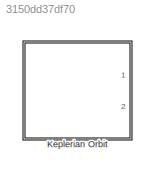
MODEL slx_3150dd37df70
KIND library
CONFIG AbsTol = auto
CONFIG FixedStep = auto
CONFIG MaxStep = auto
CONFIG MinStep = auto
CONFIG RelTol = 1e-3
CONFIG SampleTimeConstraint = Unconstrained
CONFIG Solver = VariableStepAuto
CONFIG SolverMode = Auto
CONFIG SolverName = VariableStepAuto
CONFIG StartTime = 0.0
CONFIG StopTime = 10.0
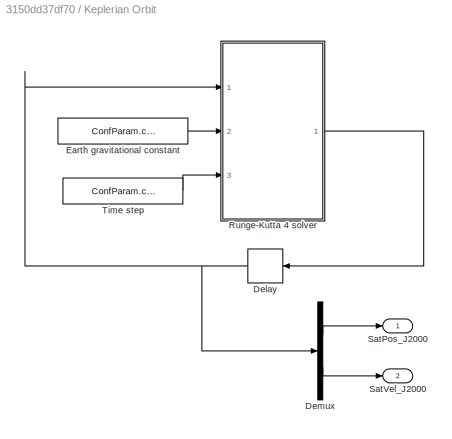
BLOCK [SubSystem] Keplerian Orbit
  Ports = [0, 2]
  RequestExecContextInheritance = off
BLOCK [Delay] Keplerian Orbit/Delay
  DelayLength = 1
  InitialCondition = ConfParam.confOrbit.InitOrbit
  InputPortMap = u0
  Ports = [1, 1]
  SampleTime = ConfParam.confOrbit.dt
BLOCK [Demux] Keplerian Orbit/Demux
  DisplayOption = bar
  Outputs = 2
  Ports = [1, 2]
BLOCK [Constant] Keplerian Orbit/Earth gravitational constant
  Value = ConfParam.confConst.mu
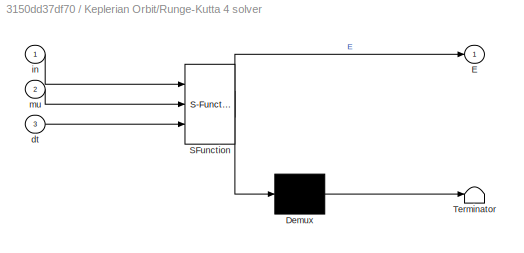
BLOCK [SubSystem] Keplerian Orbit/Runge-Kutta 4 solver
  ErrorFcn = Stateflow.Translate.translate
  PermitHierarchicalResolution = ExplicitOnly
  Ports = [3, 1]
  RequestExecContextInheritance = off
  SFBlockType = MATLAB Function
  TreatAsAtomicUnit = on
BLOCK [Demux] Keplerian Orbit/Runge-Kutta 4 solver/ Demux 
  Outputs = 1
  Ports = [1, 1]
BLOCK [S-Function] Keplerian Orbit/Runge-Kutta 4 solver/ SFunction 
  EnableBusSupport = off
  FunctionName = sf_sfun
  PortCounts = [3 2]
  Ports = [3, 2]
  Tag = Stateflow S-Function KepOrbit 3
BLOCK [Terminator] Keplerian Orbit/Runge-Kutta 4 solver/ Terminator 
BLOCK [Outport] Keplerian Orbit/Runge-Kutta 4 solver/E
  IconDisplay = Port number
BLOCK [Inport] Keplerian Orbit/Runge-Kutta 4 solver/dt
  IconDisplay = Port number
  Port = 3
BLOCK [Inport] Keplerian Orbit/Runge-Kutta 4 solver/in
  IconDisplay = Port number
BLOCK [Inport] Keplerian Orbit/Runge-Kutta 4 solver/mu
  IconDisplay = Port number
  Port = 2
BLOCK [Outport] Keplerian Orbit/SatPos_J2000
  IconDisplay = Port number
BLOCK [Outport] Keplerian Orbit/SatVel_J2000
  IconDisplay = Port number
  Port = 2
BLOCK [Constant] Keplerian Orbit/Time step
  Value = ConfParam.confOrbit.dt
NET Keplerian Orbit/Delay:1 -> Keplerian Orbit/Demux:1, Keplerian Orbit/Runge-Kutta 4 solver:1
LINE Keplerian Orbit/Demux:1 -> Keplerian Orbit/SatPos_J2000:1
LINE Keplerian Orbit/Demux:2 -> Keplerian Orbit/SatVel_J2000:1
LINE Keplerian Orbit/Earth gravitational constant:1 -> Keplerian Orbit/Runge-Kutta 4 solver:2
LINE Keplerian Orbit/Runge-Kutta 4 solver:1 -> Keplerian Orbit/Delay:1
LINE Keplerian Orbit/Time step:1 -> Keplerian Orbit/Runge-Kutta 4 solver:3
note: NET lines group one-source signal fan-out (src -> all destinations, sorted); 1:1 wires keep LINE
CHART Keplerian Orbit/Runge-Kutta 4 solver states=1 transitions=1
  STATE_LABEL 'eML_blk_kernel()'
  STATE_LABEL 'SCRIPT:\nfunction E=RK4(in,mu,dt)\n    % Runge-Kutta 4 solver      \n    E=in;\n    Ei=in;\n    \n    K1=dyn_kin(Ei,mu);\n    \n    Ei(:)=E(:)+dt/2*K1;\n    K2=dyn_kin(Ei,mu);\n    \n    Ei(:)=E(:)+dt/2*K2;\n    K3=dyn_kin(Ei,mu);\n    \n    Ei(:)=E(:)+dt*K3;\n    K4=dyn_kin(Ei,mu);\n    \n    E(:)=E(:)+dt/6*(K1+2*(K2+K3)+K4);\n\nend\n'
